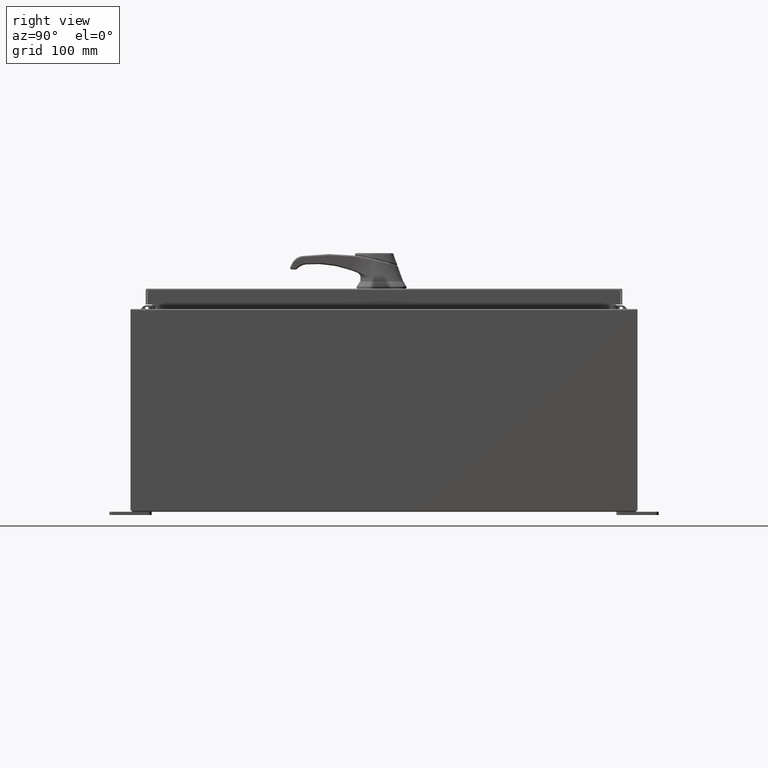
[diagram: clean part render]
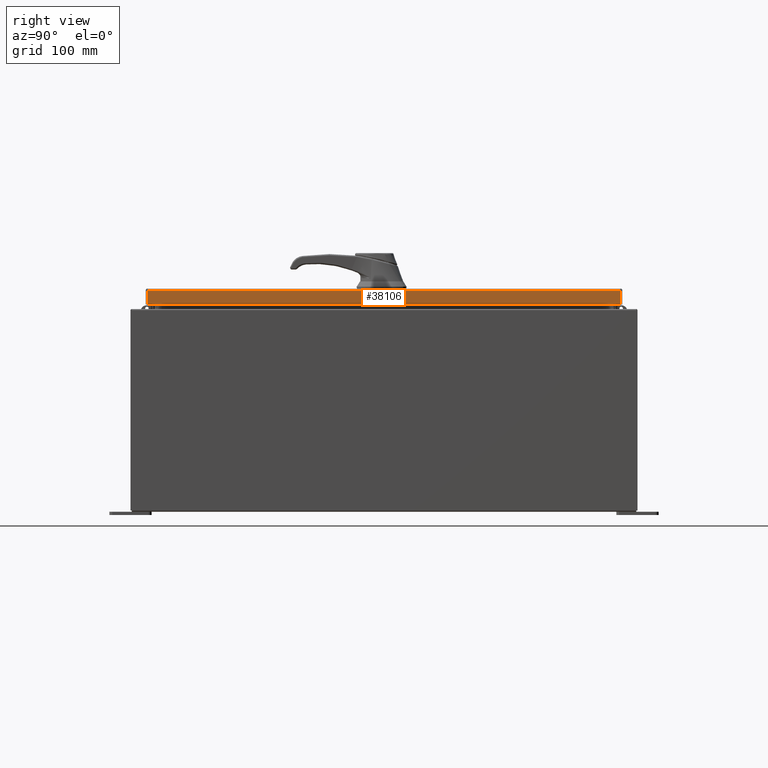
[diagram: same view with one face highlighted and labeled with its STEP entity id]
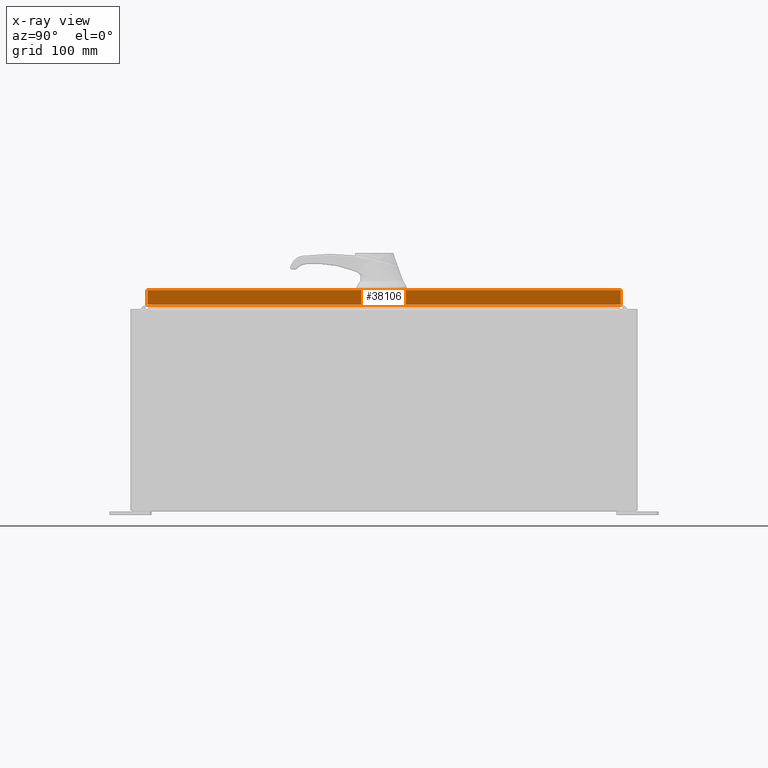
[diagram: x-ray of the same camera — body ghosted, the highlighted face saturated]
A machine part, right view. The second image highlights one B-rep face of the part: STEP entity #38106.
The next image is the same camera in x-ray: the body ghosted, the highlighted face saturated — about 0% of this face is hidden behind the body in this view.
In plain terms, the highlighted planar face has unit normal (1, 0, 0).
Its self-contained STEP definition (entity closure, byte-faithful):
#1085 = ORIENTED_EDGE ( 'NONE', *, *, #89025, .F. ) ;
#2321 = LINE ( 'NONE', #74676, #96802 ) ;
#5507 = CARTESIAN_POINT ( 'NONE',  ( 11.07799999999999900, 14.00515786437626900, 1.261124562427948200E-013 ) ) ;
#7555 = LINE ( 'NONE', #5507, #29143 ) ;
#12483 = VERTEX_POINT ( 'NONE', #56108 ) ;
#16505 = EDGE_CURVE ( 'NONE', #52207, #12483, #7555, .T. ) ;
#21295 = LINE ( 'NONE', #48643, #115836 ) ;
#25772 = FACE_OUTER_BOUND ( 'NONE', #118524, .T. ) ;
#29143 = VECTOR ( 'NONE', #98003, 39.37007874015748100 ) ;
#38106 = ADVANCED_FACE ( 'NONE', ( #25772 ), #91361, .T. ) ;
#38670 = DIRECTION ( 'NONE',  ( 0.0000000000000000000, -1.000000000000000000, 0.0000000000000000000 ) ) ;
#40534 = EDGE_CURVE ( 'NONE', #52207, #40635, #21295, .T. ) ;
#40536 = LINE ( 'NONE', #58130, #64864 ) ;
#40635 = VERTEX_POINT ( 'NONE', #67397 ) ;
#43950 = ORIENTED_EDGE ( 'NONE', *, *, #40534, .F. ) ;
#45962 = EDGE_CURVE ( 'NONE', #12483, #106331, #2321, .T. ) ;
#48643 = CARTESIAN_POINT ( 'NONE',  ( 11.07800000000000300, -14.09399999999999900, -0.9376999999999997600 ) ) ;
#52207 = VERTEX_POINT ( 'NONE', #95870 ) ;
#55002 = DIRECTION ( 'NONE',  ( 2.532419924601866100E-015, 0.0000000000000000000, -1.000000000000000000 ) ) ;
#56108 = CARTESIAN_POINT ( 'NONE',  ( 11.07799999999999900, 14.00515786437626500, -0.08770000000000008300 ) ) ;
#58130 = CARTESIAN_POINT ( 'NONE',  ( 11.07799999999999900, -14.00515786437626900, -0.07469999999999980800 ) ) ;
#64235 = AXIS2_PLACEMENT_3D ( 'NONE', #81810, #109831, #55002 ) ;
#64864 = VECTOR ( 'NONE', #67346, 39.37007874015748100 ) ;
#67346 = DIRECTION ( 'NONE',  ( -2.532419924601866100E-015, -6.982962677686265900E-015, 1.000000000000000000 ) ) ;
#67397 = CARTESIAN_POINT ( 'NONE',  ( 11.07800000000000300, -14.00515786437626200, -0.9376999999999997600 ) ) ;
#74676 = CARTESIAN_POINT ( 'NONE',  ( 11.07799999999999900, 0.0000000000000000000, -0.08770000000000008300 ) ) ;
#76157 = DIRECTION ( 'NONE',  ( 0.0000000000000000000, -1.000000000000000000, 0.0000000000000000000 ) ) ;
#81810 = CARTESIAN_POINT ( 'NONE',  ( 11.07799999999999900, 0.0000000000000000000, 2.831496158075105700E-014 ) ) ;
#83519 = ORIENTED_EDGE ( 'NONE', *, *, #45962, .T. ) ;
#89025 = EDGE_CURVE ( 'NONE', #40635, #106331, #40536, .T. ) ;
#91361 = PLANE ( 'NONE',  #64235 ) ;
#95870 = CARTESIAN_POINT ( 'NONE',  ( 11.07800000000000300, 14.00515786437627200, -0.9376999999999997600 ) ) ;
#96802 = VECTOR ( 'NONE', #38670, 39.37007874015748100 ) ;
#98003 = DIRECTION ( 'NONE',  ( -2.532419924601866100E-015, -6.982962677686265900E-015, 1.000000000000000000 ) ) ;
#100580 = ORIENTED_EDGE ( 'NONE', *, *, #16505, .T. ) ;
#106331 = VERTEX_POINT ( 'NONE', #116039 ) ;
#109831 = DIRECTION ( 'NONE',  ( 1.000000000000000000, 0.0000000000000000000, 2.532419924601866100E-015 ) ) ;
#115836 = VECTOR ( 'NONE', #76157, 39.37007874015748100 ) ;
#116039 = CARTESIAN_POINT ( 'NONE',  ( 11.07799999999999900, -14.00515786437626900, -0.08770000000000008300 ) ) ;
#118524 = EDGE_LOOP ( 'NONE', ( #1085, #43950, #100580, #83519 ) ) ;